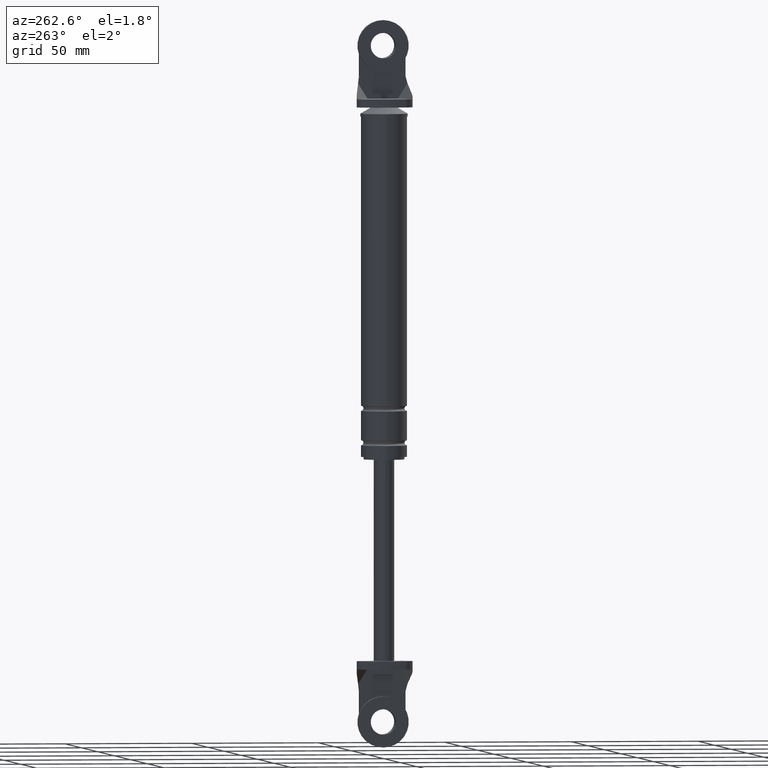
[diagram: clean part render]
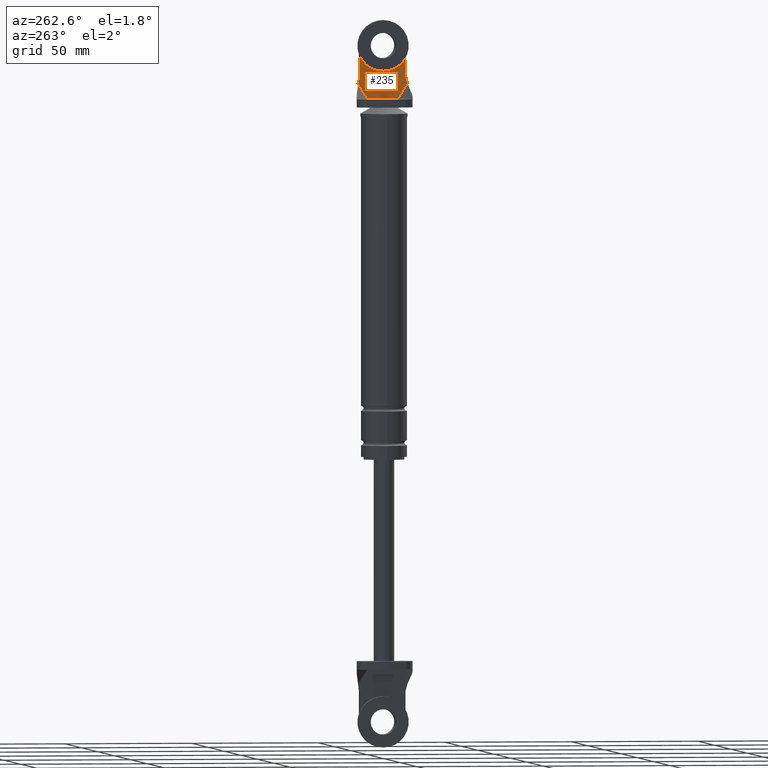
[diagram: same view with one face highlighted and labeled with its STEP entity id]
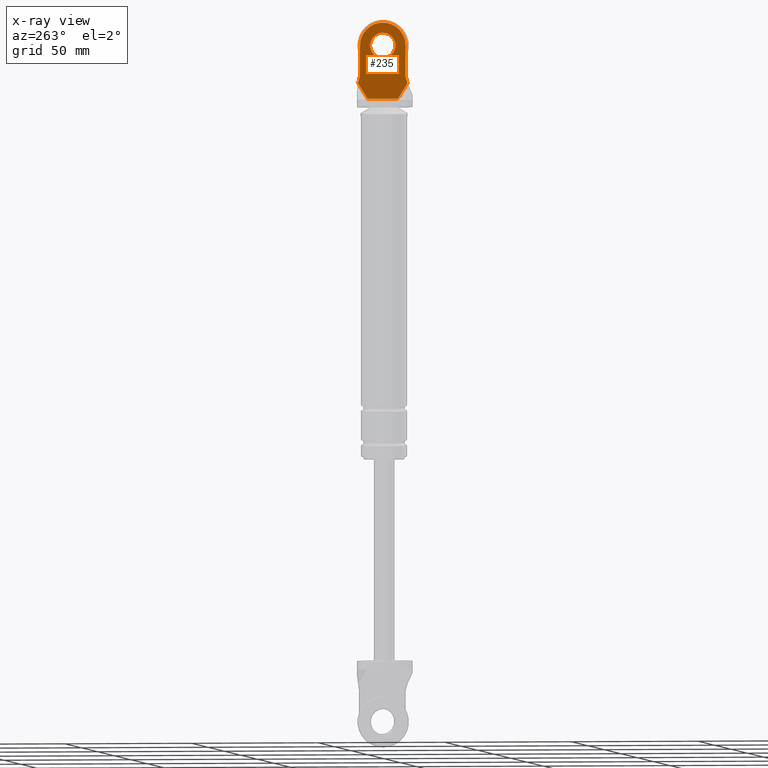
[diagram: x-ray of the same camera — body ghosted, the highlighted face saturated]
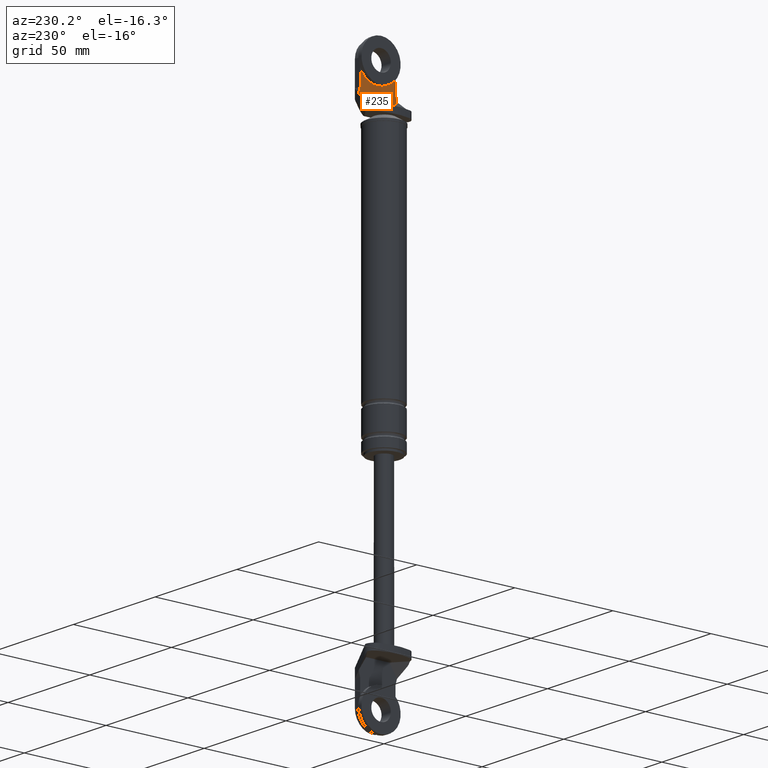
[diagram: same view with one face highlighted and labeled with its STEP entity id]
A machine part, auxiliary view. The second image highlights one B-rep face of the part: STEP entity #235.
The next image is the same camera in x-ray: the body ghosted, the highlighted face saturated — about 0% of this face is hidden behind the body in this view.
A second angle (auxiliary view) of the same face is appended — the face is thin or edge-on in the first view.
In plain terms, the highlighted planar face has unit normal (1, 0, 0).
Its self-contained STEP definition (entity closure, byte-faithful):
#235=ADVANCED_FACE('',(#604,#605),#603,.F.);
#603=PLANE('',#1281);
#604=FACE_OUTER_BOUND('',#1282,.T.);
#605=FACE_BOUND('',#1283,.T.);
#1278=CARTESIAN_POINT('',(3.80000300000E+000,-1.16951792999E+001,8.92199849607E+001));
#1279=DIRECTION('',(1.00000000000E+000,0.00000000000E+000,0.00000000000E+000));
#1280=DIRECTION('',(0.00000000000E+000,1.00000000000E+000,-1.22460635382E-016));
#1281=AXIS2_PLACEMENT_3D('',#1278,#1279,#1280);
#1282=EDGE_LOOP('',(#1908,#1909,#1910,#1911,#1912,#1913,#1914,#1915,#1916,#1917));
#1283=EDGE_LOOP('',(#1918,#1919));
#1908=ORIENTED_EDGE('',*,*,#2246,.F.);
#1909=ORIENTED_EDGE('',*,*,#2233,.T.);
#1910=ORIENTED_EDGE('',*,*,#2231,.T.);
#1911=ORIENTED_EDGE('',*,*,#2236,.F.);
#1912=ORIENTED_EDGE('',*,*,#2242,.T.);
#1913=ORIENTED_EDGE('',*,*,#2240,.F.);
#1914=ORIENTED_EDGE('',*,*,#2197,.T.);
#1915=ORIENTED_EDGE('',*,*,#2247,.T.);
#1916=ORIENTED_EDGE('',*,*,#2238,.F.);
#1917=ORIENTED_EDGE('',*,*,#2245,.T.);
#1918=ORIENTED_EDGE('',*,*,#2248,.F.);
#1919=ORIENTED_EDGE('',*,*,#2249,.F.);
#2197=EDGE_CURVE('',#2621,#2614,#2622,.T.);
#2231=EDGE_CURVE('',#2852,#2845,#2853,.T.);
#2233=EDGE_CURVE('',#2865,#2852,#2866,.T.);
#2236=EDGE_CURVE('',#2878,#2845,#2885,.T.);
#2238=EDGE_CURVE('',#2891,#2898,#2899,.T.);
#2240=EDGE_CURVE('',#2621,#2911,#2912,.T.);
#2242=EDGE_CURVE('',#2878,#2911,#2924,.T.);
#2245=EDGE_CURVE('',#2891,#2936,#2943,.T.);
#2246=EDGE_CURVE('',#2865,#2936,#2949,.T.);
#2247=EDGE_CURVE('',#2614,#2898,#2955,.T.);
#2248=EDGE_CURVE('',#2961,#2962,#2963,.T.);
#2249=EDGE_CURVE('',#2962,#2961,#2969,.T.);
#2614=VERTEX_POINT('',#3840);
#2621=VERTEX_POINT('',#3844);
#2622=LINE('',#3845,#3846);
#2845=VERTEX_POINT('',#3987);
#2852=VERTEX_POINT('',#3991);
#2853=LINE('',#3992,#3993);
#2865=VERTEX_POINT('',#3998);
#2866=LINE('',#3999,#4000);
#2878=VERTEX_POINT('',#4005);
#2885=LINE('',#4009,#4010);
#2891=VERTEX_POINT('',#4012);
#2898=VERTEX_POINT('',#4016);
#2899=LINE('',#4017,#4018);
#2911=VERTEX_POINT('',#4023);
#2912=LINE('',#4024,#4025);
#2924=LINE('',#4030,#4031);
#2936=VERTEX_POINT('',#4036);
#2943=CIRCLE('',#4043,9.00000000000E+000);
#2949=LINE('',#4044,#4045);
#2955=LINE('',#4047,#4048);
#2961=VERTEX_POINT('',#4050);
#2962=VERTEX_POINT('',#4051);
#2963=CIRCLE('',#4055,5.00000000000E+000);
#2969=CIRCLE('',#4059,5.00000000000E+000);
#3840=CARTESIAN_POINT('',(3.80000300000E+000,-9.74598274994E+000,9.82159394757E+001));
#3844=CARTESIAN_POINT('',(3.80000300000E+000,-9.74598274994E+000,9.81935636119E+001));
#3845=CARTESIAN_POINT('',(3.80000300000E+000,-9.74598274994E+000,9.81935636119E+001));
#3846=VECTOR('',#3847,2.23758638136E-002);
#3847=DIRECTION('',(0.00000000000E+000,0.00000000000E+000,1.00000000000E+000));
#3987=CARTESIAN_POINT('',(3.80000300000E+000,9.74598274994E+000,9.81935636119E+001));
#3991=CARTESIAN_POINT('',(3.80000300000E+000,9.74598274994E+000,9.82159394757E+001));
#3992=CARTESIAN_POINT('',(3.80000300000E+000,9.74598274994E+000,9.82159394757E+001));
#3993=VECTOR('',#3994,2.23758638137E-002);
#3994=DIRECTION('',(0.00000000000E+000,0.00000000000E+000,-1.00000000000E+000));
#3998=CARTESIAN_POINT('',(3.80000300000E+000,9.00000000000E+000,1.00999985000E+002));
#3999=CARTESIAN_POINT('',(3.80000300000E+000,9.00000000000E+000,1.00999985000E+002));
#4000=VECTOR('',#4001,2.88225601652E+000);
#4001=DIRECTION('',(0.00000000000E+000,2.58819045103E-001,-9.65925826289E-001));
#4005=CARTESIAN_POINT('',(3.80000300000E+000,6.00000000000E+000,9.21999850000E+001));
#4009=CARTESIAN_POINT('',(3.80000300000E+000,6.00000000000E+000,9.21999850000E+001));
#4010=VECTOR('',#4011,7.06791138451E+000);
#4011=DIRECTION('',(0.00000000000E+000,5.29998544994E-001,8.47998550886E-001));
#4012=CARTESIAN_POINT('',(3.80000300000E+000,-9.00000000000E+000,1.12999984215E+002));
#4016=CARTESIAN_POINT('',(3.80000300000E+000,-9.00000000000E+000,1.00999985000E+002));
#4017=CARTESIAN_POINT('',(3.80000300000E+000,-9.00000000000E+000,1.12999984215E+002));
#4018=VECTOR('',#4019,1.19999992146E+001);
#4019=DIRECTION('',(0.00000000000E+000,-1.48029746305E-016,-1.00000000000E+000));
#4023=CARTESIAN_POINT('',(3.80000300000E+000,-6.00000000000E+000,9.21999850000E+001));
#4024=CARTESIAN_POINT('',(3.80000300000E+000,-9.74598274994E+000,9.81935636119E+001));
#4025=VECTOR('',#4026,7.06791138451E+000);
#4026=DIRECTION('',(0.00000000000E+000,5.29998544994E-001,-8.47998550886E-001));
#4030=CARTESIAN_POINT('',(3.80000300000E+000,6.00000000000E+000,9.21999850000E+001));
#4031=VECTOR('',#4032,1.20000000000E+001);
#4032=DIRECTION('',(0.00000000000E+000,-1.00000000000E+000,0.00000000000E+000));
#4036=CARTESIAN_POINT('',(3.80000300000E+000,9.00000000000E+000,1.12999985000E+002));
#4040=CARTESIAN_POINT('',(3.80000300000E+000,1.50626581520E-014,1.12999985000E+002));
#4041=DIRECTION('',(-1.00000000000E+000,0.00000000000E+000,0.00000000000E+000));
#4042=DIRECTION('',(-0.00000000000E+000,-1.22460635382E-016,-1.00000000000E+000));
#4043=AXIS2_PLACEMENT_3D('',#4040,#4041,#4042);
#4044=CARTESIAN_POINT('',(3.80000300000E+000,9.00000000000E+000,1.00999985000E+002));
#4045=VECTOR('',#4046,1.20000000000E+001);
#4046=DIRECTION('',(0.00000000000E+000,1.48029736617E-016,1.00000000000E+000));
#4047=CARTESIAN_POINT('',(3.80000300000E+000,-9.74598274994E+000,9.82159394757E+001));
#4048=VECTOR('',#4049,2.88225601652E+000);
#4049=DIRECTION('',(0.00000000000E+000,2.58819045103E-001,9.65925826289E-001));
#4050=CARTESIAN_POINT('',(3.80000300000E+000,1.48029736617E-014,1.07999985000E+002));
#4051=CARTESIAN_POINT('',(3.80000300000E+000,1.56749613289E-014,1.17999985000E+002));
#4052=CARTESIAN_POINT('',(3.80000300000E+000,1.50626581520E-014,1.12999985000E+002));
#4053=DIRECTION('',(-1.00000000000E+000,0.00000000000E+000,0.00000000000E+000));
#4054=DIRECTION('',(0.00000000000E+000,-1.47911419729E-031,1.00000000000E+000));
#4055=AXIS2_PLACEMENT_3D('',#4052,#4053,#4054);
#4056=CARTESIAN_POINT('',(3.80000300000E+000,1.50626581520E-014,1.12999985000E+002));
#4057=DIRECTION('',(-1.00000000000E+000,0.00000000000E+000,0.00000000000E+000));
#4058=DIRECTION('',(0.00000000000E+000,-1.47911419729E-031,1.00000000000E+000));
#4059=AXIS2_PLACEMENT_3D('',#4056,#4057,#4058);